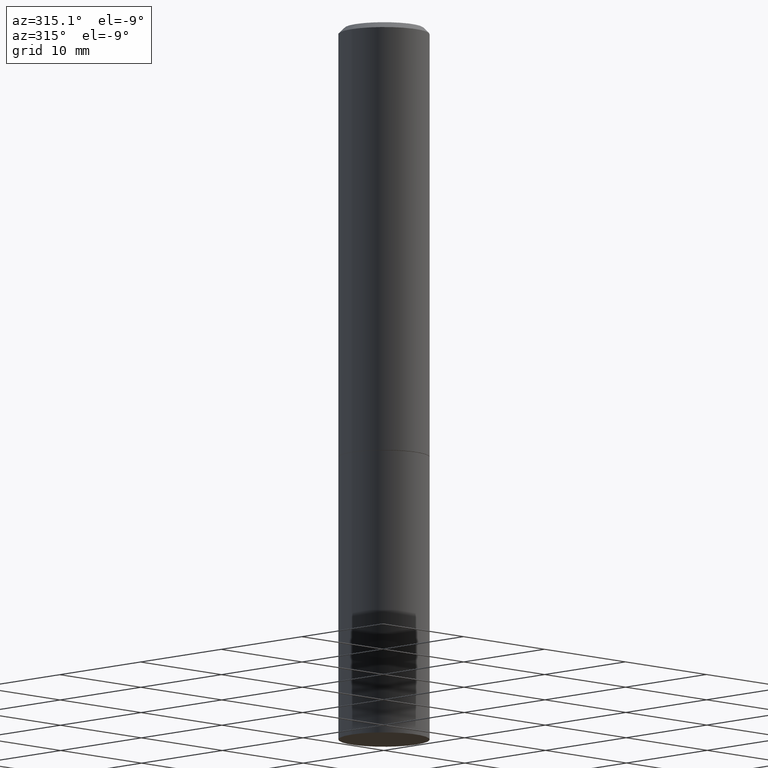
[diagram: clean part render]
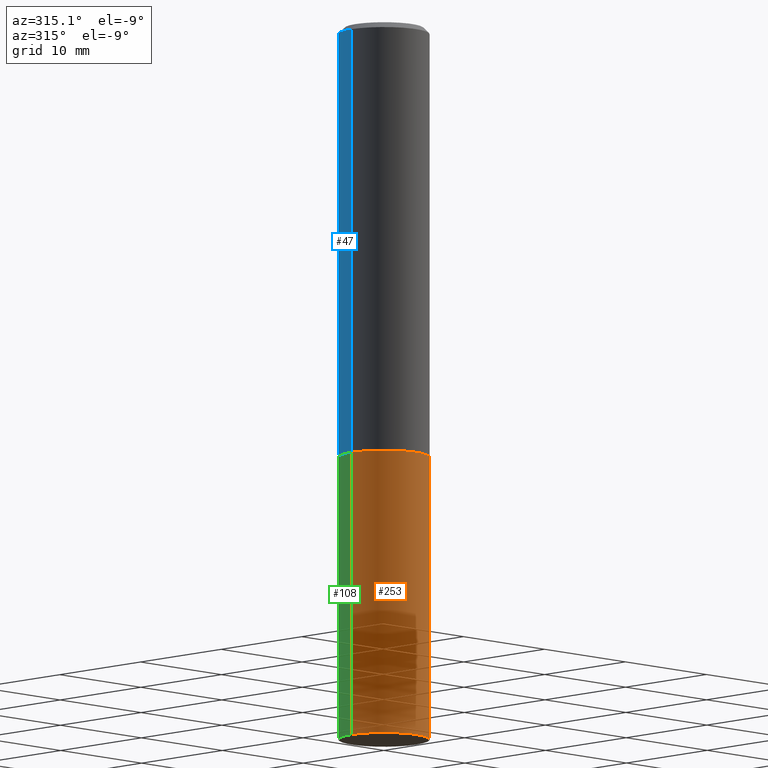
[diagram: same view with three faces highlighted in distinct colors, each labeled with its STEP entity id]
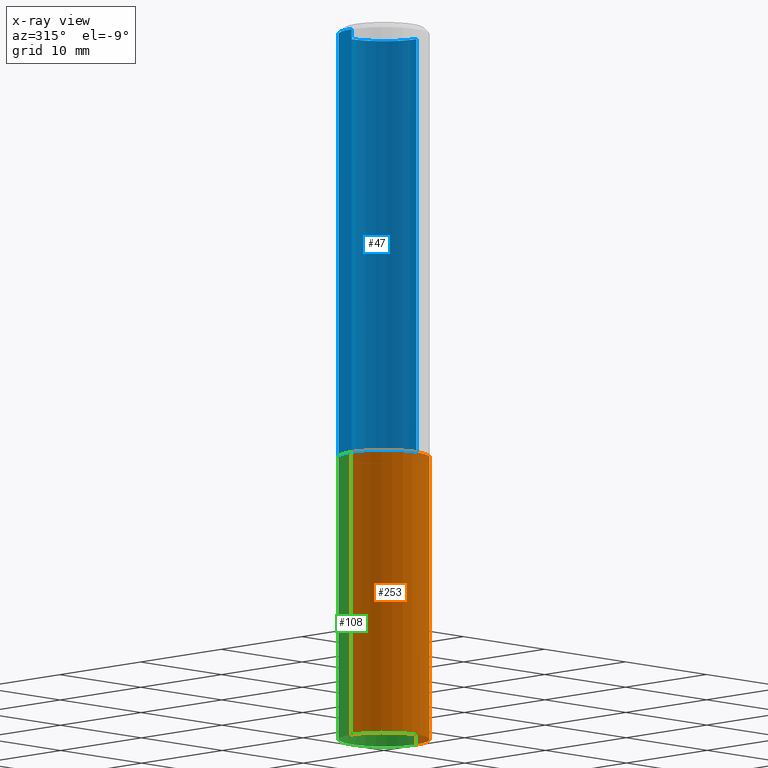
[diagram: x-ray of the same camera — body ghosted, the three highlighted faces saturated]
A machine part, auxiliary view with three faces highlighted in distinct colors.
The next image is the same camera in x-ray (body ghosted, the three faces saturated) — at least one of them is partly hidden behind the body in this view.
Their STEP definitions:

[orange] entity #253 — the highlighted cylindrical surface (partial cylindrical patch) has radius 4.0005 mm, axis along (-0, 0, 1).
#29 = DIRECTION ( 'NONE',  ( -2.445468806185136877E-29, 3.491481338843145188E-15, 1.000000000000000000 ) ) ;
#46 = ORIENTED_EDGE ( 'NONE', *, *, #70, .F. ) ;
#53 = CARTESIAN_POINT ( 'NONE',  ( -0.1575000000000000011, -5.822483814998842744E-15, -2.480300000000000171 ) ) ;
#64 = CARTESIAN_POINT ( 'NONE',  ( 3.658421334052965286E-29, -5.223256082909346937E-15, -1.496000000000000441 ) ) ;
#70 = EDGE_CURVE ( 'NONE', #355, #218, #110, .T. ) ;
#78 = VERTEX_POINT ( 'NONE', #259 ) ;
#85 = DIRECTION ( 'NONE',  ( -2.445468806185136877E-29, 3.491481338843145188E-15, 1.000000000000000000 ) ) ;
#88 = DIRECTION ( 'NONE',  ( -2.445468806185136597E-29, 3.491481338843145583E-15, 1.000000000000000000 ) ) ;
#97 = AXIS2_PLACEMENT_3D ( 'NONE', #205, #88, #204 ) ;
#110 = LINE ( 'NONE', #225, #336 ) ;
#117 = CYLINDRICAL_SURFACE ( 'NONE', #97, 0.1575000000000000011 ) ;
#136 = CIRCLE ( 'NONE', #169, 0.1575000000000000011 ) ;
#137 = LINE ( 'NONE', #222, #272 ) ;
#143 = DIRECTION ( 'NONE',  ( 1.000000000000000000, -6.982962677686268288E-15, 0.000000000000000000 ) ) ;
#169 = AXIS2_PLACEMENT_3D ( 'NONE', #64, #182, #143 ) ;
#171 = CARTESIAN_POINT ( 'NONE',  ( 6.065496279980994755E-29, -8.659921164732655335E-15, -2.480300000000000171 ) ) ;
#175 = CARTESIAN_POINT ( 'NONE',  ( -0.1575000000000000011, -5.822483814998842744E-15, -1.496000000000000441 ) ) ;
#179 = FACE_OUTER_BOUND ( 'NONE', #189, .T. ) ;
#182 = DIRECTION ( 'NONE',  ( -2.445468806185136597E-29, 3.491481338843145583E-15, 1.000000000000000000 ) ) ;
#189 = EDGE_LOOP ( 'NONE', ( #46, #269, #298, #334 ) ) ;
#201 = DIRECTION ( 'NONE',  ( -2.445468806185136597E-29, 3.491481338843145583E-15, 1.000000000000000000 ) ) ;
#204 = DIRECTION ( 'NONE',  ( 1.000000000000000000, -6.982962677686265922E-15, 4.876176775795935232E-29 ) ) ;
#205 = CARTESIAN_POINT ( 'NONE',  ( 0.000000000000000000, 0.000000000000000000, 0.000000000000000000 ) ) ;
#218 = VERTEX_POINT ( 'NONE', #175 ) ;
#222 = CARTESIAN_POINT ( 'NONE',  ( 0.1575000000000000011, -1.099816621735586889E-15, 7.679978421878598033E-30 ) ) ;
#225 = CARTESIAN_POINT ( 'NONE',  ( -0.1575000000000000011, 1.119104808822157801E-15, -7.747322767151475583E-30 ) ) ;
#235 = AXIS2_PLACEMENT_3D ( 'NONE', #171, #201, #306 ) ;
#239 = EDGE_CURVE ( 'NONE', #218, #78, #136, .T. ) ;
#253 = ADVANCED_FACE ( 'NONE', ( #179 ), #117, .T. ) ;
#259 = CARTESIAN_POINT ( 'NONE',  ( 0.1575000000000000011, -6.323072704644934417E-15, -1.496000000000000441 ) ) ;
#269 = ORIENTED_EDGE ( 'NONE', *, *, #318, .T. ) ;
#272 = VECTOR ( 'NONE', #29, 39.37007874015748143 ) ;
#285 = CARTESIAN_POINT ( 'NONE',  ( 0.1575000000000000011, -9.759737786468242027E-15, -2.480300000000000171 ) ) ;
#298 = ORIENTED_EDGE ( 'NONE', *, *, #364, .T. ) ;
#306 = DIRECTION ( 'NONE',  ( 1.000000000000000000, -6.982962677686261977E-15, 0.000000000000000000 ) ) ;
#318 = EDGE_CURVE ( 'NONE', #355, #356, #320, .T. ) ;
#320 = CIRCLE ( 'NONE', #235, 0.1575000000000000011 ) ;
#334 = ORIENTED_EDGE ( 'NONE', *, *, #239, .F. ) ;
#336 = VECTOR ( 'NONE', #85, 39.37007874015748143 ) ;
#355 = VERTEX_POINT ( 'NONE', #53 ) ;
#356 = VERTEX_POINT ( 'NONE', #285 ) ;
#364 = EDGE_CURVE ( 'NONE', #356, #78, #137, .T. ) ;

[blue] entity #47 — the highlighted cylindrical surface (partial cylindrical patch) has radius 4.0005 mm, axis along (-0, 0, 1).
#2 = AXIS2_PLACEMENT_3D ( 'NONE', #198, #86, #286 ) ;
#7 = CARTESIAN_POINT ( 'NONE',  ( 0.1575000000000000011, -6.319581223306091410E-15, -1.495000000000000329 ) ) ;
#12 = VECTOR ( 'NONE', #19, 39.37007874015748143 ) ;
#19 = DIRECTION ( 'NONE',  ( -2.445468806185136877E-29, 3.491481338843145188E-15, 1.000000000000000000 ) ) ;
#47 = ADVANCED_FACE ( 'NONE', ( #202 ), #174, .T. ) ;
#48 = ORIENTED_EDGE ( 'NONE', *, *, #103, .F. ) ;
#55 = EDGE_CURVE ( 'NONE', #300, #303, #228, .T. ) ;
#56 = DIRECTION ( 'NONE',  ( 1.000000000000000000, -6.982962677686265922E-15, 0.000000000000000000 ) ) ;
#63 = AXIS2_PLACEMENT_3D ( 'NONE', #84, #199, #284 ) ;
#76 = VECTOR ( 'NONE', #195, 39.37007874015748143 ) ;
#79 = ORIENTED_EDGE ( 'NONE', *, *, #55, .T. ) ;
#80 = CARTESIAN_POINT ( 'NONE',  ( -0.1574999999999998901, 1.119104808822157012E-15, -7.747322767151471379E-30 ) ) ;
#84 = CARTESIAN_POINT ( 'NONE',  ( 0.000000000000000000, 0.000000000000000000, 0.000000000000000000 ) ) ;
#86 = DIRECTION ( 'NONE',  ( -2.445468806185136597E-29, 3.491481338843145583E-15, 1.000000000000000000 ) ) ;
#87 = LINE ( 'NONE', #165, #12 ) ;
#103 = EDGE_CURVE ( 'NONE', #300, #251, #87, .T. ) ;
#125 = EDGE_LOOP ( 'NONE', ( #79, #191, #160, #48 ) ) ;
#127 = EDGE_CURVE ( 'NONE', #303, #327, #309, .T. ) ;
#131 = CIRCLE ( 'NONE', #271, 0.1574999999999998346 ) ;
#157 = EDGE_CURVE ( 'NONE', #251, #327, #131, .T. ) ;
#160 = ORIENTED_EDGE ( 'NONE', *, *, #157, .F. ) ;
#165 = CARTESIAN_POINT ( 'NONE',  ( 0.1574999999999998901, -1.099816621735586297E-15, 7.679978421878593829E-30 ) ) ;
#172 = DIRECTION ( 'NONE',  ( -2.445468806185136597E-29, 3.491481338843145583E-15, 1.000000000000000000 ) ) ;
#174 = CYLINDRICAL_SURFACE ( 'NONE', #63, 0.1574999999999998901 ) ;
#191 = ORIENTED_EDGE ( 'NONE', *, *, #127, .T. ) ;
#195 = DIRECTION ( 'NONE',  ( -2.445468806185136877E-29, 3.491481338843145188E-15, 1.000000000000000000 ) ) ;
#198 = CARTESIAN_POINT ( 'NONE',  ( 3.655975865246779683E-29, -5.219764601570503930E-15, -1.495000000000000329 ) ) ;
#199 = DIRECTION ( 'NONE',  ( -2.445468806185136597E-29, 3.491481338843145583E-15, 1.000000000000000000 ) ) ;
#202 = FACE_OUTER_BOUND ( 'NONE', #125, .T. ) ;
#228 = CIRCLE ( 'NONE', #2, 0.1575000000000000011 ) ;
#251 = VERTEX_POINT ( 'NONE', #261 ) ;
#261 = CARTESIAN_POINT ( 'NONE',  ( 0.1574999999999998346, -1.150358061425878091E-15, -0.02000000000000003511 ) ) ;
#271 = AXIS2_PLACEMENT_3D ( 'NONE', #339, #172, #56 ) ;
#284 = DIRECTION ( 'NONE',  ( 1.000000000000000000, -6.982962677686266711E-15, 4.876176775795935793E-29 ) ) ;
#286 = DIRECTION ( 'NONE',  ( 1.000000000000000000, -6.982962677686268288E-15, 0.000000000000000000 ) ) ;
#300 = VERTEX_POINT ( 'NONE', #7 ) ;
#303 = VERTEX_POINT ( 'NONE', #345 ) ;
#309 = LINE ( 'NONE', #80, #76 ) ;
#313 = CARTESIAN_POINT ( 'NONE',  ( -0.1574999999999998346, 1.029986994958722604E-15, -0.02000000000000003511 ) ) ;
#327 = VERTEX_POINT ( 'NONE', #313 ) ;
#339 = CARTESIAN_POINT ( 'NONE',  ( 4.890937612370281041E-31, -6.982962677686302702E-17, -0.02000000000000003511 ) ) ;
#345 = CARTESIAN_POINT ( 'NONE',  ( -0.1575000000000000011, -1.525692305351524236E-15, -1.495000000000000329 ) ) ;

[green] entity #108 — the highlighted cylindrical surface (partial cylindrical patch) has radius 4.0005 mm, axis along (-0, 0, 1).
#3 = CARTESIAN_POINT ( 'NONE',  ( 0.000000000000000000, 0.000000000000000000, 0.000000000000000000 ) ) ;
#20 = CARTESIAN_POINT ( 'NONE',  ( 6.065496279980994755E-29, -8.659921164732655335E-15, -2.480300000000000171 ) ) ;
#22 = EDGE_CURVE ( 'NONE', #356, #355, #68, .T. ) ;
#26 = DIRECTION ( 'NONE',  ( -2.445468806185136597E-29, 3.491481338843145583E-15, 1.000000000000000000 ) ) ;
#29 = DIRECTION ( 'NONE',  ( -2.445468806185136877E-29, 3.491481338843145188E-15, 1.000000000000000000 ) ) ;
#53 = CARTESIAN_POINT ( 'NONE',  ( -0.1575000000000000011, -5.822483814998842744E-15, -2.480300000000000171 ) ) ;
#59 = DIRECTION ( 'NONE',  ( 1.000000000000000000, -6.982962677686261977E-15, 0.000000000000000000 ) ) ;
#68 = CIRCLE ( 'NONE', #241, 0.1575000000000000011 ) ;
#70 = EDGE_CURVE ( 'NONE', #355, #218, #110, .T. ) ;
#78 = VERTEX_POINT ( 'NONE', #259 ) ;
#85 = DIRECTION ( 'NONE',  ( -2.445468806185136877E-29, 3.491481338843145188E-15, 1.000000000000000000 ) ) ;
#102 = ORIENTED_EDGE ( 'NONE', *, *, #22, .T. ) ;
#108 = ADVANCED_FACE ( 'NONE', ( #279 ), #338, .T. ) ;
#110 = LINE ( 'NONE', #225, #336 ) ;
#113 = CARTESIAN_POINT ( 'NONE',  ( 3.658421334052965286E-29, -5.223256082909346937E-15, -1.496000000000000441 ) ) ;
#115 = AXIS2_PLACEMENT_3D ( 'NONE', #3, #360, #220 ) ;
#137 = LINE ( 'NONE', #222, #272 ) ;
#151 = ORIENTED_EDGE ( 'NONE', *, *, #364, .F. ) ;
#175 = CARTESIAN_POINT ( 'NONE',  ( -0.1575000000000000011, -5.822483814998842744E-15, -1.496000000000000441 ) ) ;
#181 = EDGE_CURVE ( 'NONE', #78, #218, #248, .T. ) ;
#187 = ORIENTED_EDGE ( 'NONE', *, *, #70, .T. ) ;
#194 = ORIENTED_EDGE ( 'NONE', *, *, #181, .F. ) ;
#218 = VERTEX_POINT ( 'NONE', #175 ) ;
#220 = DIRECTION ( 'NONE',  ( 1.000000000000000000, -6.982962677686265922E-15, 4.876176775795935232E-29 ) ) ;
#222 = CARTESIAN_POINT ( 'NONE',  ( 0.1575000000000000011, -1.099816621735586889E-15, 7.679978421878598033E-30 ) ) ;
#225 = CARTESIAN_POINT ( 'NONE',  ( -0.1575000000000000011, 1.119104808822157801E-15, -7.747322767151475583E-30 ) ) ;
#226 = DIRECTION ( 'NONE',  ( 1.000000000000000000, -6.982962677686268288E-15, 0.000000000000000000 ) ) ;
#241 = AXIS2_PLACEMENT_3D ( 'NONE', #20, #314, #59 ) ;
#248 = CIRCLE ( 'NONE', #260, 0.1575000000000000011 ) ;
#259 = CARTESIAN_POINT ( 'NONE',  ( 0.1575000000000000011, -6.323072704644934417E-15, -1.496000000000000441 ) ) ;
#260 = AXIS2_PLACEMENT_3D ( 'NONE', #113, #26, #226 ) ;
#272 = VECTOR ( 'NONE', #29, 39.37007874015748143 ) ;
#273 = EDGE_LOOP ( 'NONE', ( #102, #187, #194, #151 ) ) ;
#279 = FACE_OUTER_BOUND ( 'NONE', #273, .T. ) ;
#285 = CARTESIAN_POINT ( 'NONE',  ( 0.1575000000000000011, -9.759737786468242027E-15, -2.480300000000000171 ) ) ;
#314 = DIRECTION ( 'NONE',  ( -2.445468806185136597E-29, 3.491481338843145583E-15, 1.000000000000000000 ) ) ;
#336 = VECTOR ( 'NONE', #85, 39.37007874015748143 ) ;
#338 = CYLINDRICAL_SURFACE ( 'NONE', #115, 0.1575000000000000011 ) ;
#355 = VERTEX_POINT ( 'NONE', #53 ) ;
#356 = VERTEX_POINT ( 'NONE', #285 ) ;
#360 = DIRECTION ( 'NONE',  ( -2.445468806185136597E-29, 3.491481338843145583E-15, 1.000000000000000000 ) ) ;
#364 = EDGE_CURVE ( 'NONE', #356, #78, #137, .T. ) ;